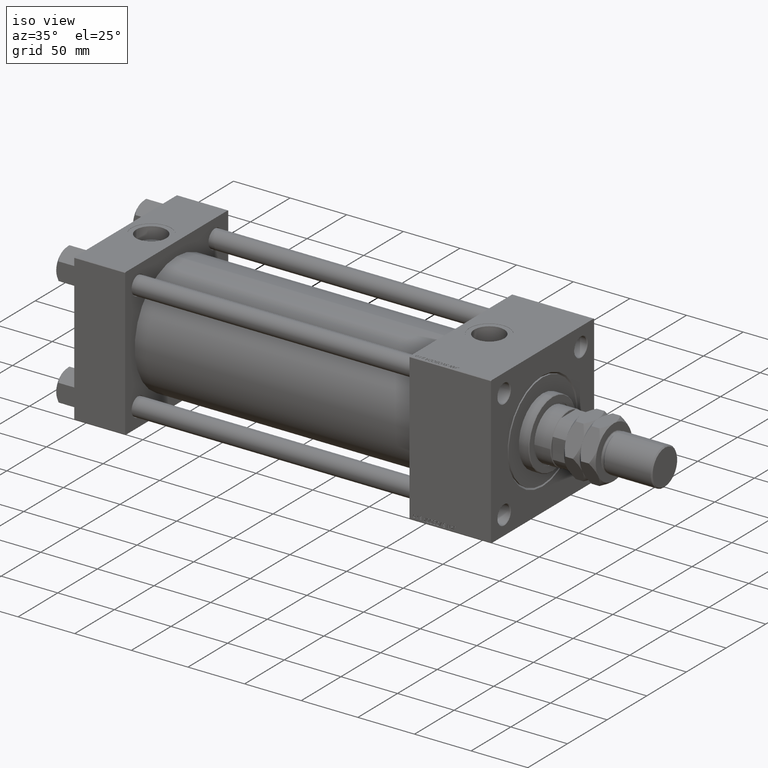
[diagram: clean part render]
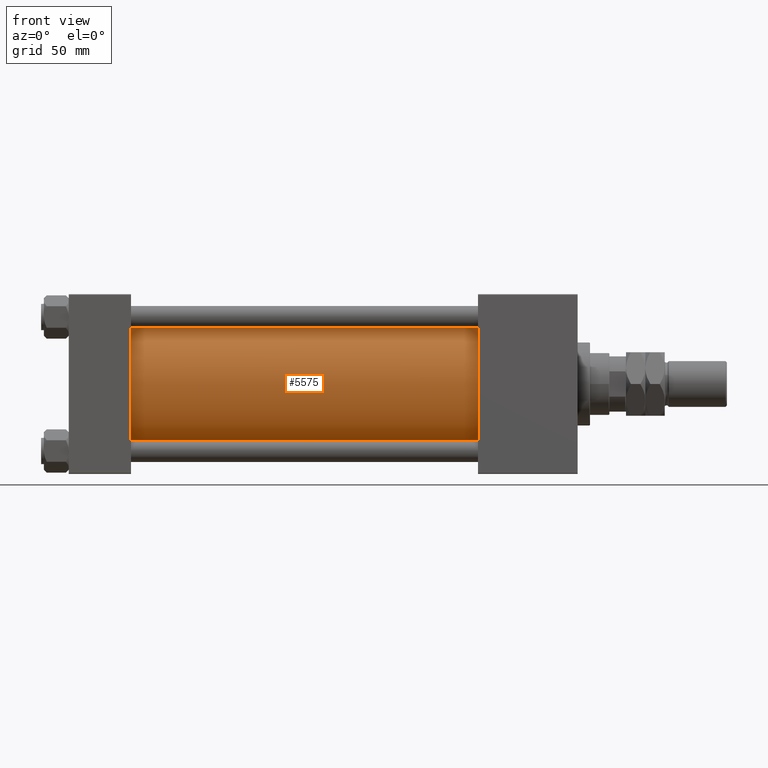
[diagram: tour spotlight — one face highlighted and labeled with its STEP entity id]
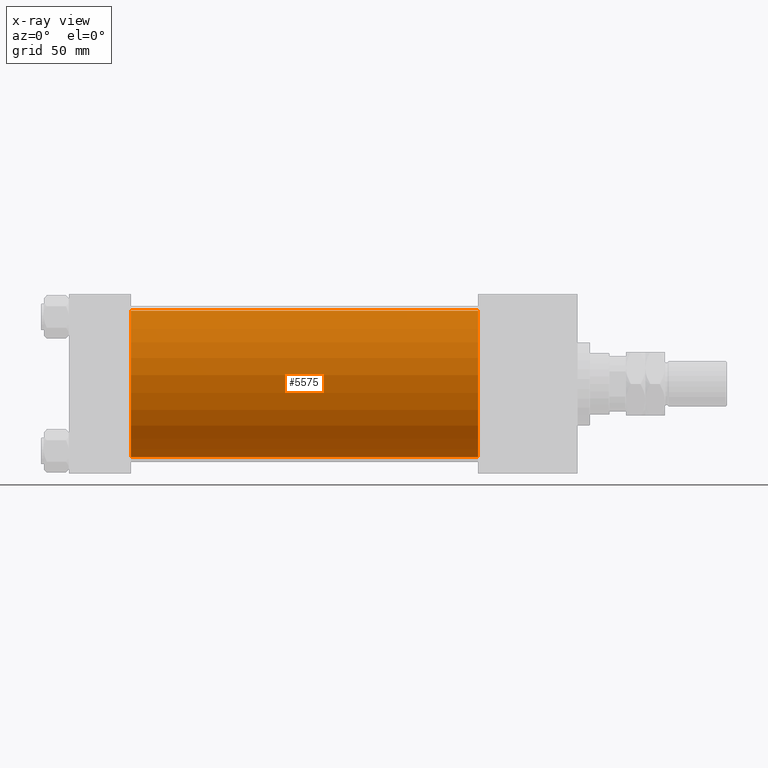
[diagram: x-ray of the same camera — body ghosted, this tour face saturated]
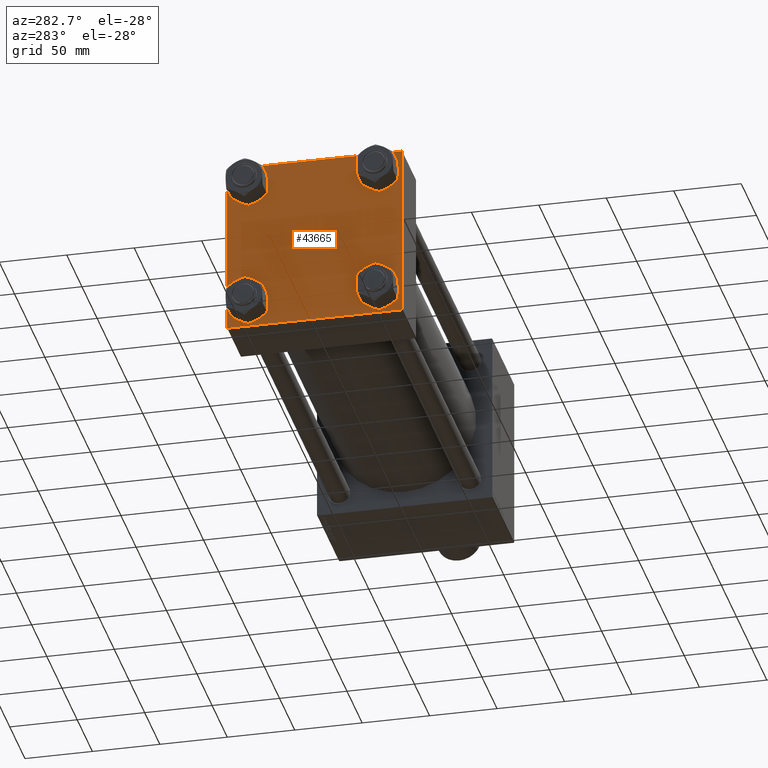
[diagram: tour spotlight — one face highlighted and labeled with its STEP entity id]
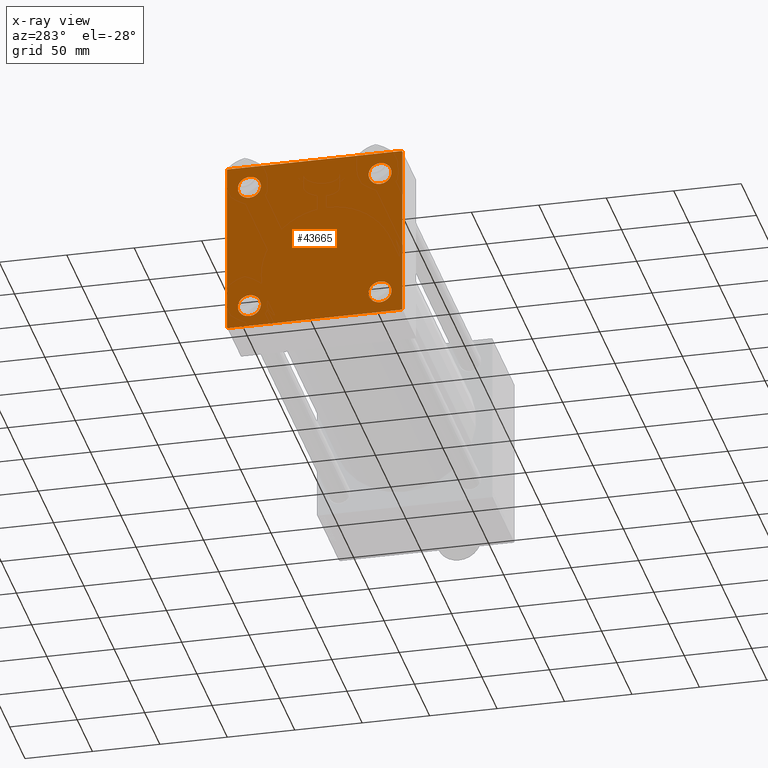
[diagram: x-ray of the same camera — body ghosted, this tour face saturated]
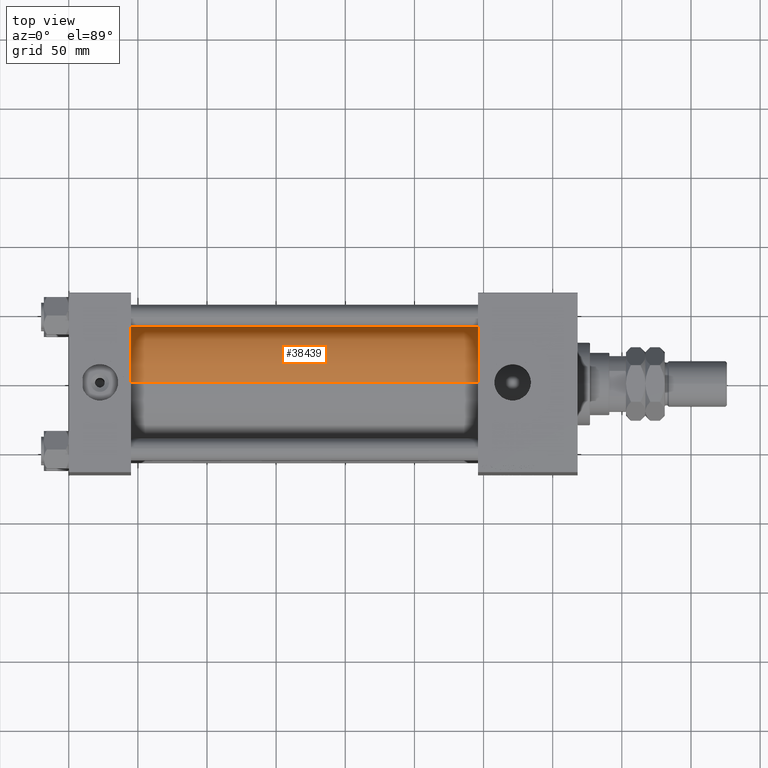
[diagram: tour spotlight — one face highlighted and labeled with its STEP entity id]
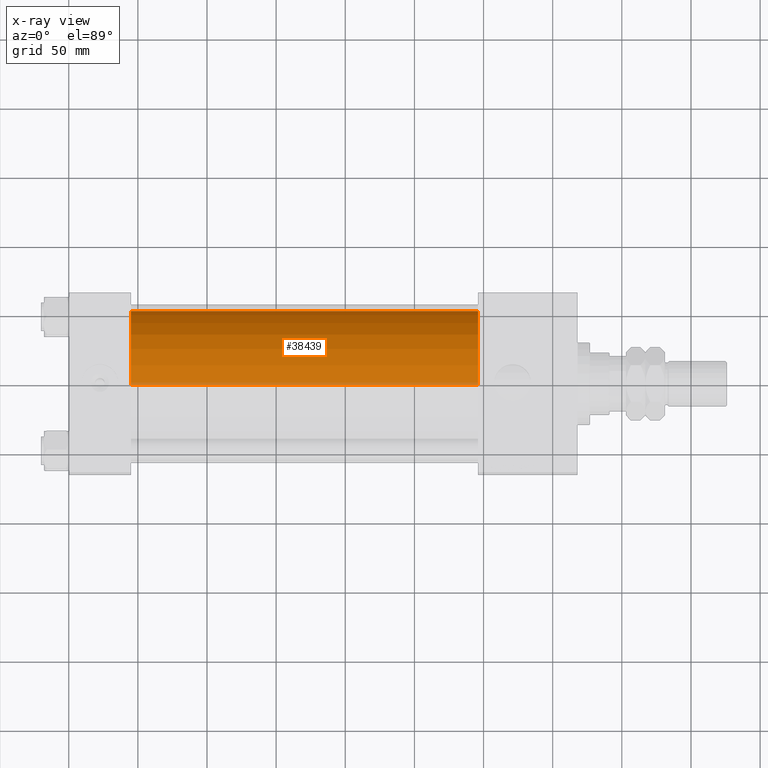
[diagram: x-ray of the same camera — body ghosted, this tour face saturated]
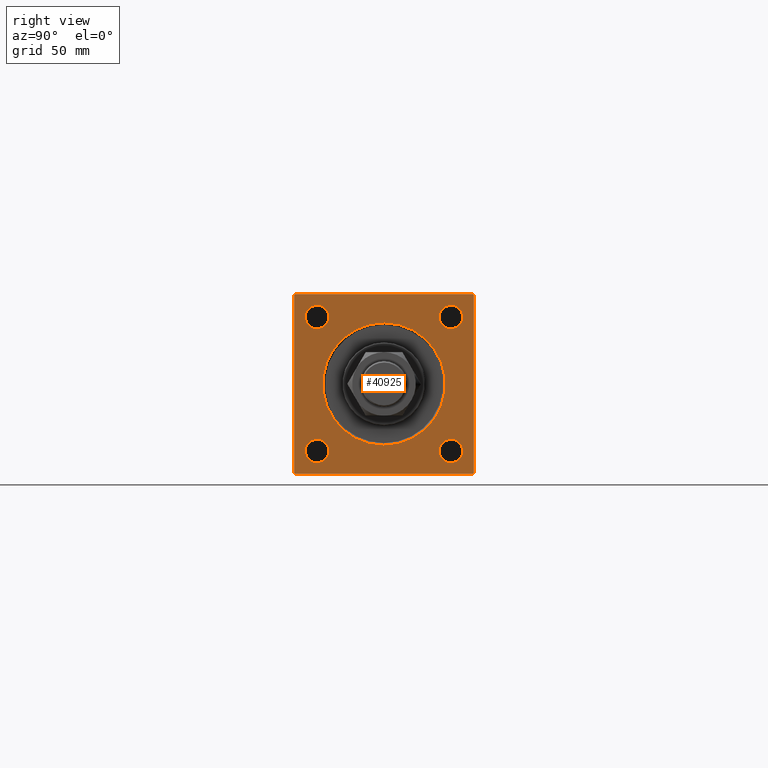
[diagram: tour spotlight — one face highlighted and labeled with its STEP entity id]
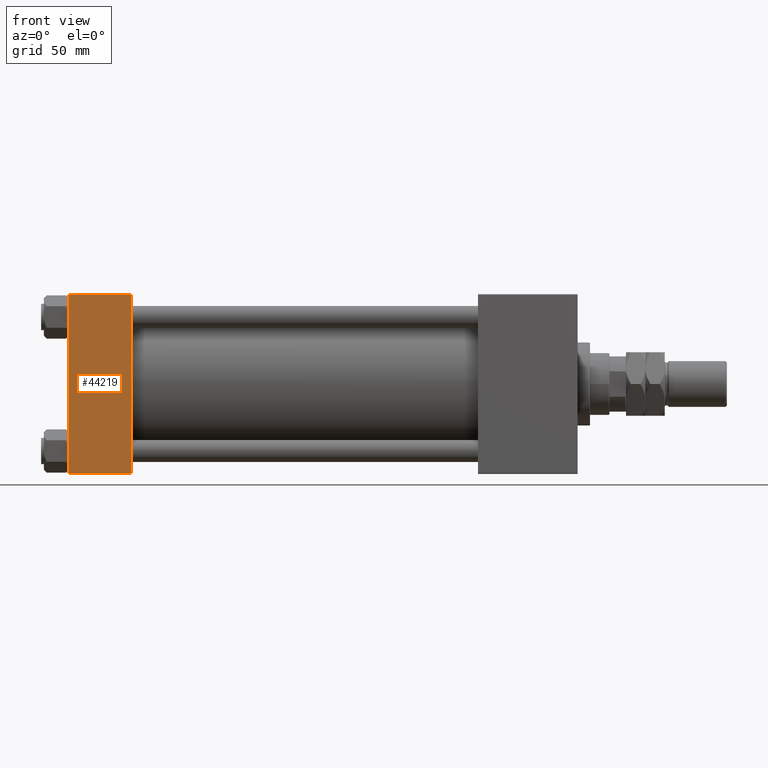
[diagram: tour spotlight — one face highlighted and labeled with its STEP entity id]
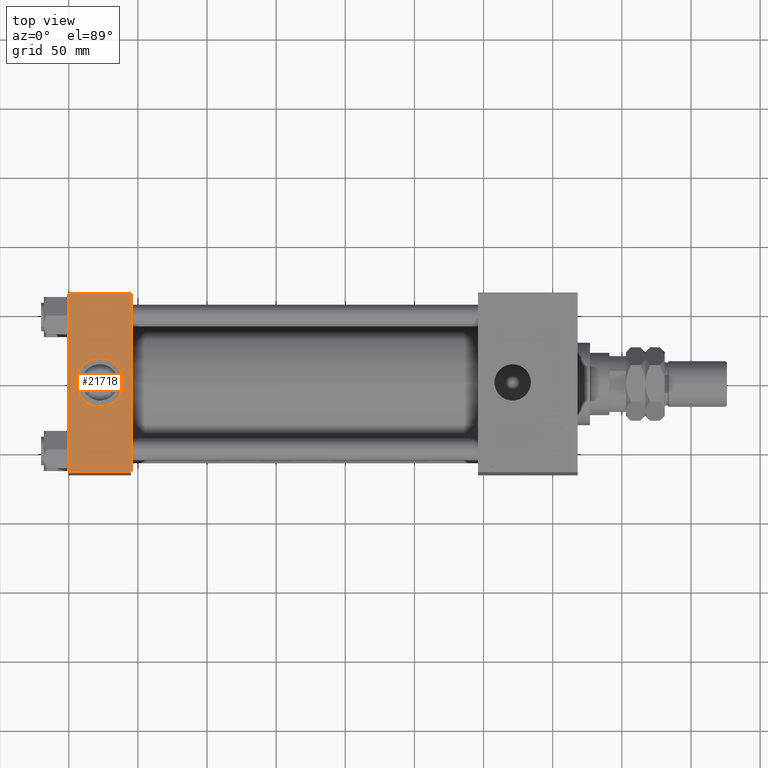
[diagram: tour spotlight — one face highlighted and labeled with its STEP entity id]
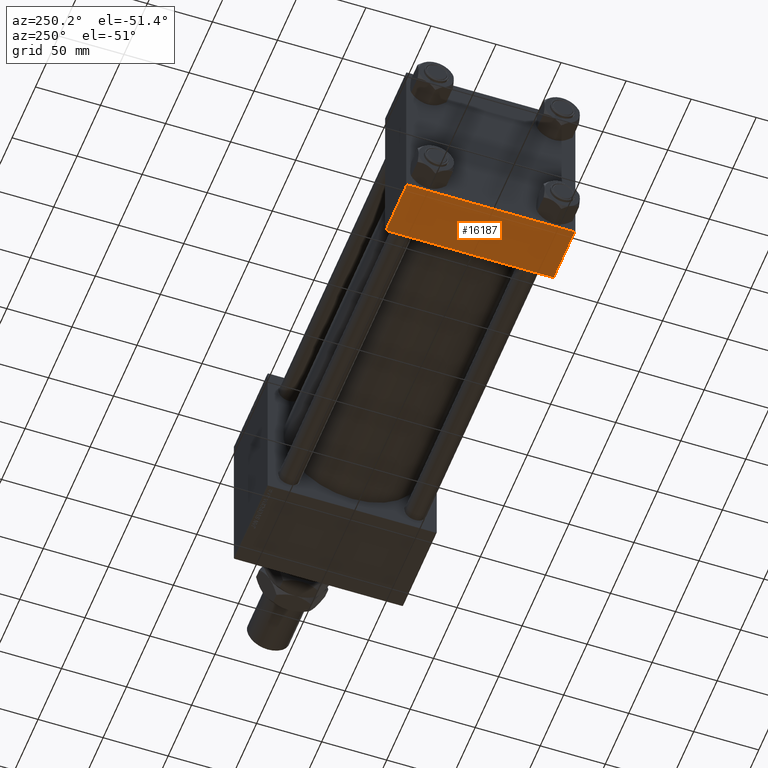
[diagram: tour spotlight — one face highlighted and labeled with its STEP entity id]
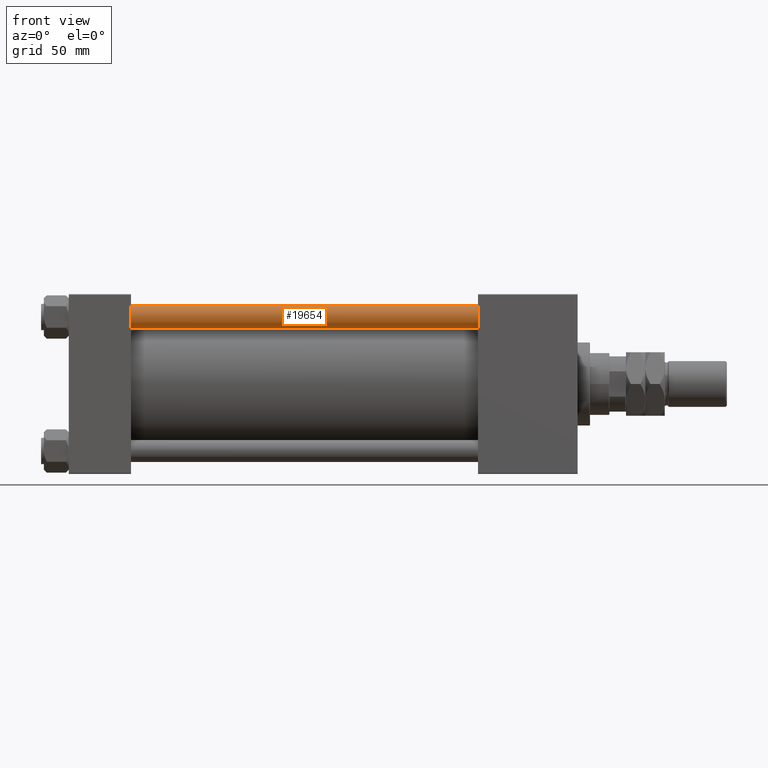
[diagram: tour spotlight — one face highlighted and labeled with its STEP entity id]
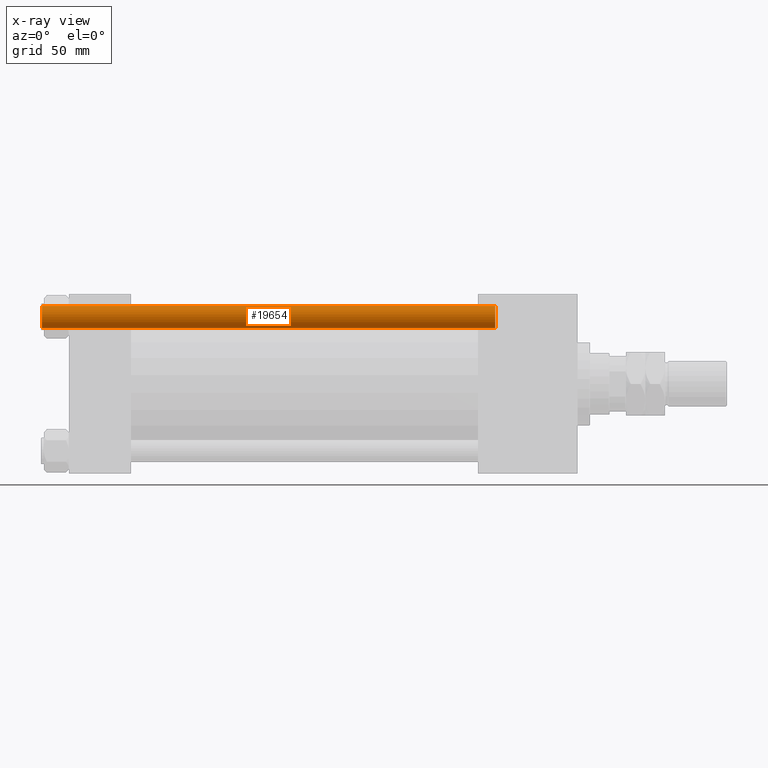
[diagram: x-ray of the same camera — body ghosted, this tour face saturated]
A machine part: a face-by-face anatomy tour. The part has 1245 B-rep faces; the first image is the clean iso view, then the 8 largest visible faces are spotlighted one at a time (largest first), each with its STEP entity span.

Face 1 — front view, entity #5575. An x-ray twin of the same camera follows (body ghosted, this face saturated) — the face is partly hidden behind the body. In plain terms, the highlighted cylindrical surface (partial cylindrical patch) has radius 53 mm, axis along (-1, -0, -0).
Definition (entity closure, byte-faithful):
#298 = LINE ( 'NONE', #19900, #9761 ) ;
#1106 = DIRECTION ( 'NONE',  ( 0.000000000000000000, 0.000000000000000000, 1.000000000000000000 ) ) ;
#1274 = CARTESIAN_POINT ( 'NONE',  ( 44.99999999999998579, 3.888542821515762466E-15, -53.00000000000000711 ) ) ;
#2366 = LINE ( 'NONE', #27468, #18955 ) ;
#3142 = DIRECTION ( 'NONE',  ( -1.000000000000000000, -0.000000000000000000, -0.000000000000000000 ) ) ;
#3909 = DIRECTION ( 'NONE',  ( 1.000000000000000000, -0.000000000000000000, 0.000000000000000000 ) ) ;
#5575 = ADVANCED_FACE ( 'NONE', ( #9579 ), #49522, .T. ) ;
#6116 = CARTESIAN_POINT ( 'NONE',  ( 296.0000000000000000, 3.888542821515762466E-15, -53.00000000000000711 ) ) ;
#8249 = VERTEX_POINT ( 'NONE', #33431 ) ;
#8633 = EDGE_LOOP ( 'NONE', ( #12034, #28032, #27151, #33427 ) ) ;
#9060 = CIRCLE ( 'NONE', #32723, 53.00000000000000711 ) ;
#9333 = EDGE_CURVE ( 'NONE', #52249, #30188, #298, .T. ) ;
#9579 = FACE_OUTER_BOUND ( 'NONE', #8633, .T. ) ;
#9761 = VECTOR ( 'NONE', #15672, 1000.000000000000000 ) ;
#12034 = ORIENTED_EDGE ( 'NONE', *, *, #9333, .F. ) ;
#14981 = DIRECTION ( 'NONE',  ( 1.000000000000000000, 0.000000000000000000, 0.000000000000000000 ) ) ;
#15565 = AXIS2_PLACEMENT_3D ( 'NONE', #41594, #29155, #1106 ) ;
#15672 = DIRECTION ( 'NONE',  ( -1.000000000000000000, -0.000000000000000000, -0.000000000000000000 ) ) ;
#15828 = EDGE_CURVE ( 'NONE', #8249, #52249, #9060, .T. ) ;
#18955 = VECTOR ( 'NONE', #3142, 1000.000000000000000 ) ;
#19900 = CARTESIAN_POINT ( 'NONE',  ( 296.0000000000000000, 3.888542821515762466E-15, -53.00000000000000711 ) ) ;
#19979 = CARTESIAN_POINT ( 'NONE',  ( 44.99999999999998579, -2.602085213965210642E-15, 53.00000000000000711 ) ) ;
#23629 = CIRCLE ( 'NONE', #47312, 53.00000000000000711 ) ;
#23753 = DIRECTION ( 'NONE',  ( 0.000000000000000000, 0.000000000000000000, 1.000000000000000000 ) ) ;
#27151 = ORIENTED_EDGE ( 'NONE', *, *, #27806, .T. ) ;
#27468 = CARTESIAN_POINT ( 'NONE',  ( 296.0000000000000000, -2.602085213965210642E-15, 53.00000000000000711 ) ) ;
#27806 = EDGE_CURVE ( 'NONE', #8249, #48332, #2366, .T. ) ;
#28032 = ORIENTED_EDGE ( 'NONE', *, *, #15828, .F. ) ;
#29155 = DIRECTION ( 'NONE',  ( -1.000000000000000000, -0.000000000000000000, -0.000000000000000000 ) ) ;
#30188 = VERTEX_POINT ( 'NONE', #1274 ) ;
#32723 = AXIS2_PLACEMENT_3D ( 'NONE', #46467, #14981, #43026 ) ;
#33427 = ORIENTED_EDGE ( 'NONE', *, *, #45921, .T. ) ;
#33431 = CARTESIAN_POINT ( 'NONE',  ( 296.0000000000000000, -2.602085213965210642E-15, 53.00000000000000711 ) ) ;
#41594 = CARTESIAN_POINT ( 'NONE',  ( 296.0000000000000000, -2.602085213965210642E-15, 0.000000000000000000 ) ) ;
#43026 = DIRECTION ( 'NONE',  ( 0.000000000000000000, 0.000000000000000000, -1.000000000000000000 ) ) ;
#43868 = CARTESIAN_POINT ( 'NONE',  ( 44.99999999999998579, -2.602085213965210642E-15, 0.000000000000000000 ) ) ;
#45921 = EDGE_CURVE ( 'NONE', #48332, #30188, #23629, .T. ) ;
#46467 = CARTESIAN_POINT ( 'NONE',  ( 296.0000000000000000, -2.602085213965210642E-15, 0.000000000000000000 ) ) ;
#47312 = AXIS2_PLACEMENT_3D ( 'NONE', #43868, #3909, #23753 ) ;
#48332 = VERTEX_POINT ( 'NONE', #19979 ) ;
#49522 = CYLINDRICAL_SURFACE ( 'NONE', #15565, 53.00000000000000711 ) ;
#52249 = VERTEX_POINT ( 'NONE', #6116 ) ;

Face 2 — auxiliary view, entity #43665. An x-ray twin of the same camera follows (body ghosted, this face saturated) — the face is partly hidden behind the body. In plain terms, the highlighted planar face has unit normal (-1, 0, 0).
Definition (entity closure, byte-faithful):
#77 = CARTESIAN_POINT ( 'NONE',  ( 0.000000000000000000, 64.74999999999997158, -64.74999999999997158 ) ) ;
#233 = CARTESIAN_POINT ( 'NONE',  ( 0.000000000000000000, 65.00000000000000000, -64.49999999999995737 ) ) ;
#287 = ORIENTED_EDGE ( 'NONE', *, *, #1269, .T. ) ;
#333 = AXIS2_PLACEMENT_3D ( 'NONE', #487, #20597, #12918 ) ;
#487 = CARTESIAN_POINT ( 'NONE',  ( 0.000000000000000000, 48.45000000000000995, -48.45000000000001705 ) ) ;
#647 = VERTEX_POINT ( 'NONE', #37345 ) ;
#900 = EDGE_CURVE ( 'NONE', #3429, #31429, #42297, .T. ) ;
#1025 = VERTEX_POINT ( 'NONE', #44114 ) ;
#1269 = EDGE_CURVE ( 'NONE', #20301, #34874, #47524, .T. ) ;
#1921 = CARTESIAN_POINT ( 'NONE',  ( 0.000000000000000000, 64.49999999999997158, 65.00000000000001421 ) ) ;
#2381 = VERTEX_POINT ( 'NONE', #16963 ) ;
#2655 = CARTESIAN_POINT ( 'NONE',  ( 0.000000000000000000, 48.45000000000000995, 56.95000000000002416 ) ) ;
#2808 = CARTESIAN_POINT ( 'NONE',  ( 0.000000000000000000, -48.44999999999999574, -48.45000000000003126 ) ) ;
#2841 = CARTESIAN_POINT ( 'NONE',  ( 0.000000000000000000, -64.49999999999994316, -65.00000000000000000 ) ) ;
#2859 = VECTOR ( 'NONE', #32248, 1000.000000000000000 ) ;
#2925 = DIRECTION ( 'NONE',  ( 0.000000000000000000, 0.000000000000000000, 1.000000000000000000 ) ) ;
#3193 = VECTOR ( 'NONE', #16219, 1000.000000000000114 ) ;
#3273 = ORIENTED_EDGE ( 'NONE', *, *, #26575, .T. ) ;
#3429 = VERTEX_POINT ( 'NONE', #1921 ) ;
#3872 = AXIS2_PLACEMENT_3D ( 'NONE', #30822, #35580, #42992 ) ;
#3878 = CARTESIAN_POINT ( 'NONE',  ( 0.000000000000000000, -48.44999999999999574, -48.45000000000003126 ) ) ;
#3971 = VECTOR ( 'NONE', #30924, 1000.000000000000000 ) ;
#4055 = LINE ( 'NONE', #77, #3193 ) ;
#4203 = CIRCLE ( 'NONE', #46436, 8.500000000000007105 ) ;
#4401 = AXIS2_PLACEMENT_3D ( 'NONE', #2808, #39583, #14991 ) ;
#4681 = VERTEX_POINT ( 'NONE', #15090 ) ;
#4771 = VERTEX_POINT ( 'NONE', #233 ) ;
#5256 = AXIS2_PLACEMENT_3D ( 'NONE', #8005, #12488, #27119 ) ;
#5416 = PLANE ( 'NONE',  #16784 ) ;
#5974 = DIRECTION ( 'NONE',  ( 0.000000000000000000, -0.7071067811865279218, 0.7071067811865671127 ) ) ;
#6421 = AXIS2_PLACEMENT_3D ( 'NONE', #14459, #30604, #33542 ) ;
#6499 = CARTESIAN_POINT ( 'NONE',  ( 0.000000000000000000, 48.45000000000000995, -39.95000000000000284 ) ) ;
#6661 = AXIS2_PLACEMENT_3D ( 'NONE', #3878, #12333, #7588 ) ;
#7140 = LINE ( 'NONE', #27228, #32575 ) ;
#7588 = DIRECTION ( 'NONE',  ( 0.000000000000000000, 0.000000000000000000, 1.000000000000000000 ) ) ;
#7988 = VERTEX_POINT ( 'NONE', #46180 ) ;
#8005 = CARTESIAN_POINT ( 'NONE',  ( 0.000000000000000000, 48.45000000000000995, 48.45000000000001705 ) ) ;
#8737 = EDGE_CURVE ( 'NONE', #25458, #14020, #35860, .T. ) ;
#10167 = ORIENTED_EDGE ( 'NONE', *, *, #900, .T. ) ;
#10367 = DIRECTION ( 'NONE',  ( 0.000000000000000000, 0.000000000000000000, 1.000000000000000000 ) ) ;
#10403 = LINE ( 'NONE', #14105, #33275 ) ;
#10641 = CIRCLE ( 'NONE', #6421, 8.500000000000007105 ) ;
#10879 = CIRCLE ( 'NONE', #6661, 8.500000000000007105 ) ;
#11030 = ORIENTED_EDGE ( 'NONE', *, *, #8737, .T. ) ;
#12258 = EDGE_CURVE ( 'NONE', #22644, #40965, #7140, .T. ) ;
#12333 = DIRECTION ( 'NONE',  ( 1.000000000000000000, -0.000000000000000000, 0.000000000000000000 ) ) ;
#12488 = DIRECTION ( 'NONE',  ( 1.000000000000000000, -0.000000000000000000, 0.000000000000000000 ) ) ;
#12560 = ORIENTED_EDGE ( 'NONE', *, *, #41226, .T. ) ;
#12637 = LINE ( 'NONE', #20065, #2859 ) ;
#12918 = DIRECTION ( 'NONE',  ( 0.000000000000000000, 0.000000000000000000, 1.000000000000000000 ) ) ;
#13380 = EDGE_LOOP ( 'NONE', ( #25192, #49647 ) ) ;
#13384 = VECTOR ( 'NONE', #18501, 1000.000000000000000 ) ;
#13562 = EDGE_CURVE ( 'NONE', #51478, #40965, #30307, .T. ) ;
#14020 = VERTEX_POINT ( 'NONE', #28867 ) ;
#14105 = CARTESIAN_POINT ( 'NONE',  ( -0.000000000000000000, -64.74999999999819522, 64.75000000000179057 ) ) ;
#14459 = CARTESIAN_POINT ( 'NONE',  ( 0.000000000000000000, -48.44999999999999574, 48.45000000000003126 ) ) ;
#14991 = DIRECTION ( 'NONE',  ( 0.000000000000000000, 0.000000000000000000, 1.000000000000000000 ) ) ;
#15090 = CARTESIAN_POINT ( 'NONE',  ( 0.000000000000000000, -64.49999999999997158, 65.00000000000000000 ) ) ;
#15137 = EDGE_CURVE ( 'NONE', #22835, #2381, #36089, .T. ) ;
#15472 = EDGE_CURVE ( 'NONE', #31429, #4771, #19524, .T. ) ;
#16219 = DIRECTION ( 'NONE',  ( -0.000000000000000000, -0.7071067811865474617, -0.7071067811865474617 ) ) ;
#16784 = AXIS2_PLACEMENT_3D ( 'NONE', #17594, #33743, #18895 ) ;
#16963 = CARTESIAN_POINT ( 'NONE',  ( 0.000000000000000000, -48.44999999999999574, 56.95000000000003837 ) ) ;
#17074 = VECTOR ( 'NONE', #30650, 1000.000000000000114 ) ;
#17594 = CARTESIAN_POINT ( 'NONE',  ( 0.000000000000000000, 0.000000000000000000, 0.000000000000000000 ) ) ;
#17902 = ORIENTED_EDGE ( 'NONE', *, *, #13562, .T. ) ;
#18235 = LINE ( 'NONE', #51023, #13384 ) ;
#18501 = DIRECTION ( 'NONE',  ( 0.000000000000000000, -1.000000000000000000, -1.067522139062650425E-16 ) ) ;
#18609 = DIRECTION ( 'NONE',  ( -0.000000000000000000, 0.7071067811865672237, 0.7071067811865279218 ) ) ;
#18895 = DIRECTION ( 'NONE',  ( -0.000000000000000000, 0.000000000000000000, 1.000000000000000000 ) ) ;
#19524 = LINE ( 'NONE', #35168, #3971 ) ;
#19766 = ORIENTED_EDGE ( 'NONE', *, *, #43401, .F. ) ;
#19793 = EDGE_CURVE ( 'NONE', #647, #1025, #10879, .T. ) ;
#20065 = CARTESIAN_POINT ( 'NONE',  ( 0.000000000000000000, 65.00000000000000000, -64.99999999999998579 ) ) ;
#20301 = VERTEX_POINT ( 'NONE', #2655 ) ;
#20597 = DIRECTION ( 'NONE',  ( 1.000000000000000000, -0.000000000000000000, 0.000000000000000000 ) ) ;
#21028 = FACE_BOUND ( 'NONE', #33363, .T. ) ;
#21336 = CIRCLE ( 'NONE', #4401, 8.500000000000007105 ) ;
#21658 = VECTOR ( 'NONE', #5974, 1000.000000000000000 ) ;
#22644 = VERTEX_POINT ( 'NONE', #30461 ) ;
#22835 = VERTEX_POINT ( 'NONE', #49178 ) ;
#23782 = DIRECTION ( 'NONE',  ( 0.000000000000000000, 0.000000000000000000, -1.000000000000000000 ) ) ;
#23796 = ORIENTED_EDGE ( 'NONE', *, *, #27905, .T. ) ;
#24997 = ORIENTED_EDGE ( 'NONE', *, *, #15137, .T. ) ;
#25192 = ORIENTED_EDGE ( 'NONE', *, *, #19793, .T. ) ;
#25458 = VERTEX_POINT ( 'NONE', #6499 ) ;
#26506 = ORIENTED_EDGE ( 'NONE', *, *, #33090, .T. ) ;
#26575 = EDGE_CURVE ( 'NONE', #22644, #4681, #10403, .T. ) ;
#27119 = DIRECTION ( 'NONE',  ( 0.000000000000000000, 0.000000000000000000, 1.000000000000000000 ) ) ;
#27228 = CARTESIAN_POINT ( 'NONE',  ( 0.000000000000000000, -65.00000000000000000, 65.00000000000000000 ) ) ;
#27314 = ORIENTED_EDGE ( 'NONE', *, *, #35578, .T. ) ;
#27905 = EDGE_CURVE ( 'NONE', #7988, #51478, #12637, .T. ) ;
#28008 = CARTESIAN_POINT ( 'NONE',  ( 0.000000000000000000, 48.45000000000000995, 39.95000000000000284 ) ) ;
#28867 = CARTESIAN_POINT ( 'NONE',  ( 0.000000000000000000, 48.45000000000000995, -56.95000000000002416 ) ) ;
#29301 = AXIS2_PLACEMENT_3D ( 'NONE', #39181, #47892, #2925 ) ;
#30307 = LINE ( 'NONE', #33770, #21658 ) ;
#30461 = CARTESIAN_POINT ( 'NONE',  ( 0.000000000000000000, -65.00000000000000000, 64.50000000000000000 ) ) ;
#30600 = ORIENTED_EDGE ( 'NONE', *, *, #12258, .F. ) ;
#30604 = DIRECTION ( 'NONE',  ( 1.000000000000000000, -0.000000000000000000, 0.000000000000000000 ) ) ;
#30650 = DIRECTION ( 'NONE',  ( 0.000000000000000000, 0.7071067811865474617, -0.7071067811865474617 ) ) ;
#30822 = CARTESIAN_POINT ( 'NONE',  ( 0.000000000000000000, 48.45000000000000995, -48.45000000000001705 ) ) ;
#30924 = DIRECTION ( 'NONE',  ( 0.000000000000000000, 0.000000000000000000, -1.000000000000000000 ) ) ;
#31429 = VERTEX_POINT ( 'NONE', #38616 ) ;
#31854 = EDGE_LOOP ( 'NONE', ( #287, #38427 ) ) ;
#32248 = DIRECTION ( 'NONE',  ( 0.000000000000000000, -1.000000000000000000, -1.067522139062650425E-16 ) ) ;
#32575 = VECTOR ( 'NONE', #23782, 1000.000000000000000 ) ;
#33090 = EDGE_CURVE ( 'NONE', #14020, #25458, #42754, .T. ) ;
#33275 = VECTOR ( 'NONE', #18609, 1000.000000000000000 ) ;
#33363 = EDGE_LOOP ( 'NONE', ( #11030, #26506 ) ) ;
#33542 = DIRECTION ( 'NONE',  ( 0.000000000000000000, 0.000000000000000000, 1.000000000000000000 ) ) ;
#33743 = DIRECTION ( 'NONE',  ( -1.000000000000000000, 0.000000000000000000, -0.000000000000000000 ) ) ;
#33770 = CARTESIAN_POINT ( 'NONE',  ( 0.000000000000000000, -64.75000000000176215, -64.74999999999816680 ) ) ;
#34874 = VERTEX_POINT ( 'NONE', #28008 ) ;
#35168 = CARTESIAN_POINT ( 'NONE',  ( 0.000000000000000000, 65.00000000000000000, 65.00000000000001421 ) ) ;
#35507 = CARTESIAN_POINT ( 'NONE',  ( 0.000000000000000000, 48.45000000000000995, 48.45000000000001705 ) ) ;
#35578 = EDGE_CURVE ( 'NONE', #2381, #22835, #10641, .T. ) ;
#35580 = DIRECTION ( 'NONE',  ( 1.000000000000000000, -0.000000000000000000, 0.000000000000000000 ) ) ;
#35860 = CIRCLE ( 'NONE', #333, 8.500000000000007105 ) ;
#36089 = CIRCLE ( 'NONE', #29301, 8.500000000000007105 ) ;
#37173 = FACE_BOUND ( 'NONE', #31854, .T. ) ;
#37345 = CARTESIAN_POINT ( 'NONE',  ( 0.000000000000000000, -48.44999999999999574, -39.95000000000001705 ) ) ;
#37706 = FACE_BOUND ( 'NONE', #13380, .T. ) ;
#38427 = ORIENTED_EDGE ( 'NONE', *, *, #49037, .T. ) ;
#38616 = CARTESIAN_POINT ( 'NONE',  ( 0.000000000000000000, 65.00000000000000000, 64.49999999999998579 ) ) ;
#39048 = ORIENTED_EDGE ( 'NONE', *, *, #15472, .T. ) ;
#39181 = CARTESIAN_POINT ( 'NONE',  ( 0.000000000000000000, -48.44999999999999574, 48.45000000000003126 ) ) ;
#39360 = EDGE_LOOP ( 'NONE', ( #39048, #12560, #23796, #17902, #30600, #3273, #19766, #10167 ) ) ;
#39583 = DIRECTION ( 'NONE',  ( 1.000000000000000000, -0.000000000000000000, 0.000000000000000000 ) ) ;
#39720 = DIRECTION ( 'NONE',  ( 1.000000000000000000, -0.000000000000000000, 0.000000000000000000 ) ) ;
#40965 = VERTEX_POINT ( 'NONE', #49132 ) ;
#41226 = EDGE_CURVE ( 'NONE', #4771, #7988, #4055, .T. ) ;
#41668 = FACE_OUTER_BOUND ( 'NONE', #39360, .T. ) ;
#42297 = LINE ( 'NONE', #46271, #17074 ) ;
#42450 = FACE_BOUND ( 'NONE', #51816, .T. ) ;
#42754 = CIRCLE ( 'NONE', #3872, 8.500000000000007105 ) ;
#42992 = DIRECTION ( 'NONE',  ( 0.000000000000000000, 0.000000000000000000, 1.000000000000000000 ) ) ;
#43401 = EDGE_CURVE ( 'NONE', #3429, #4681, #18235, .T. ) ;
#43665 = ADVANCED_FACE ( 'NONE', ( #42450, #37706, #21028, #37173, #41668 ), #5416, .T. ) ;
#44114 = CARTESIAN_POINT ( 'NONE',  ( 0.000000000000000000, -48.44999999999999574, -56.95000000000003837 ) ) ;
#46180 = CARTESIAN_POINT ( 'NONE',  ( 0.000000000000000000, 64.49999999999997158, -64.99999999999998579 ) ) ;
#46271 = CARTESIAN_POINT ( 'NONE',  ( 0.000000000000000000, 64.74999999999998579, 64.74999999999998579 ) ) ;
#46436 = AXIS2_PLACEMENT_3D ( 'NONE', #35507, #39720, #10367 ) ;
#47524 = CIRCLE ( 'NONE', #5256, 8.500000000000007105 ) ;
#47892 = DIRECTION ( 'NONE',  ( 1.000000000000000000, -0.000000000000000000, 0.000000000000000000 ) ) ;
#49037 = EDGE_CURVE ( 'NONE', #34874, #20301, #4203, .T. ) ;
#49132 = CARTESIAN_POINT ( 'NONE',  ( 0.000000000000000000, -65.00000000000000000, -64.49999999999991473 ) ) ;
#49178 = CARTESIAN_POINT ( 'NONE',  ( 0.000000000000000000, -48.44999999999999574, 39.95000000000001705 ) ) ;
#49647 = ORIENTED_EDGE ( 'NONE', *, *, #51304, .T. ) ;
#51023 = CARTESIAN_POINT ( 'NONE',  ( 0.000000000000000000, 65.00000000000000000, 65.00000000000001421 ) ) ;
#51304 = EDGE_CURVE ( 'NONE', #1025, #647, #21336, .T. ) ;
#51478 = VERTEX_POINT ( 'NONE', #2841 ) ;
#51816 = EDGE_LOOP ( 'NONE', ( #27314, #24997 ) ) ;

Face 3 — top view, entity #38439. An x-ray twin of the same camera follows (body ghosted, this face saturated) — the face is partly hidden behind the body. In plain terms, the highlighted cylindrical surface (partial cylindrical patch) has radius 53 mm, axis along (-1, -0, -0).
Definition (entity closure, byte-faithful):
#298 = LINE ( 'NONE', #19900, #9761 ) ;
#1274 = CARTESIAN_POINT ( 'NONE',  ( 44.99999999999998579, 3.888542821515762466E-15, -53.00000000000000711 ) ) ;
#1981 = DIRECTION ( 'NONE',  ( 1.000000000000000000, -0.000000000000000000, 0.000000000000000000 ) ) ;
#2366 = LINE ( 'NONE', #27468, #18955 ) ;
#3032 = DIRECTION ( 'NONE',  ( 0.000000000000000000, 0.000000000000000000, 1.000000000000000000 ) ) ;
#3142 = DIRECTION ( 'NONE',  ( -1.000000000000000000, -0.000000000000000000, -0.000000000000000000 ) ) ;
#3748 = EDGE_LOOP ( 'NONE', ( #13507, #50786, #46316, #23069 ) ) ;
#6116 = CARTESIAN_POINT ( 'NONE',  ( 296.0000000000000000, 3.888542821515762466E-15, -53.00000000000000711 ) ) ;
#8249 = VERTEX_POINT ( 'NONE', #33431 ) ;
#8778 = CARTESIAN_POINT ( 'NONE',  ( 296.0000000000000000, -2.602085213965210642E-15, 0.000000000000000000 ) ) ;
#9333 = EDGE_CURVE ( 'NONE', #52249, #30188, #298, .T. ) ;
#9761 = VECTOR ( 'NONE', #15672, 1000.000000000000000 ) ;
#13507 = ORIENTED_EDGE ( 'NONE', *, *, #20308, .F. ) ;
#15206 = CARTESIAN_POINT ( 'NONE',  ( 44.99999999999998579, -2.602085213965210642E-15, 0.000000000000000000 ) ) ;
#15672 = DIRECTION ( 'NONE',  ( -1.000000000000000000, -0.000000000000000000, -0.000000000000000000 ) ) ;
#18955 = VECTOR ( 'NONE', #3142, 1000.000000000000000 ) ;
#19900 = CARTESIAN_POINT ( 'NONE',  ( 296.0000000000000000, 3.888542821515762466E-15, -53.00000000000000711 ) ) ;
#19979 = CARTESIAN_POINT ( 'NONE',  ( 44.99999999999998579, -2.602085213965210642E-15, 53.00000000000000711 ) ) ;
#20308 = EDGE_CURVE ( 'NONE', #52249, #8249, #48899, .T. ) ;
#23069 = ORIENTED_EDGE ( 'NONE', *, *, #27806, .F. ) ;
#26080 = AXIS2_PLACEMENT_3D ( 'NONE', #28548, #44947, #28019 ) ;
#27468 = CARTESIAN_POINT ( 'NONE',  ( 296.0000000000000000, -2.602085213965210642E-15, 53.00000000000000711 ) ) ;
#27806 = EDGE_CURVE ( 'NONE', #8249, #48332, #2366, .T. ) ;
#27872 = CIRCLE ( 'NONE', #48161, 53.00000000000000711 ) ;
#28019 = DIRECTION ( 'NONE',  ( 0.000000000000000000, 0.000000000000000000, -1.000000000000000000 ) ) ;
#28548 = CARTESIAN_POINT ( 'NONE',  ( 296.0000000000000000, -2.602085213965210642E-15, 0.000000000000000000 ) ) ;
#30188 = VERTEX_POINT ( 'NONE', #1274 ) ;
#33431 = CARTESIAN_POINT ( 'NONE',  ( 296.0000000000000000, -2.602085213965210642E-15, 53.00000000000000711 ) ) ;
#34112 = FACE_OUTER_BOUND ( 'NONE', #3748, .T. ) ;
#38439 = ADVANCED_FACE ( 'NONE', ( #34112 ), #44247, .T. ) ;
#41112 = AXIS2_PLACEMENT_3D ( 'NONE', #8778, #45289, #48469 ) ;
#44247 = CYLINDRICAL_SURFACE ( 'NONE', #41112, 53.00000000000000711 ) ;
#44947 = DIRECTION ( 'NONE',  ( 1.000000000000000000, 0.000000000000000000, 0.000000000000000000 ) ) ;
#45289 = DIRECTION ( 'NONE',  ( -1.000000000000000000, -0.000000000000000000, -0.000000000000000000 ) ) ;
#46316 = ORIENTED_EDGE ( 'NONE', *, *, #50796, .T. ) ;
#48161 = AXIS2_PLACEMENT_3D ( 'NONE', #15206, #1981, #3032 ) ;
#48332 = VERTEX_POINT ( 'NONE', #19979 ) ;
#48469 = DIRECTION ( 'NONE',  ( 0.000000000000000000, 0.000000000000000000, 1.000000000000000000 ) ) ;
#48899 = CIRCLE ( 'NONE', #26080, 53.00000000000000711 ) ;
#50786 = ORIENTED_EDGE ( 'NONE', *, *, #9333, .T. ) ;
#50796 = EDGE_CURVE ( 'NONE', #30188, #48332, #27872, .T. ) ;
#52249 = VERTEX_POINT ( 'NONE', #6116 ) ;

Face 4 — right view, entity #40925. In plain terms, the highlighted planar face has unit normal (-1, 0, 0).
Definition (entity closure, byte-faithful):
#308 = VERTEX_POINT ( 'NONE', #51402 ) ;
#462 = DIRECTION ( 'NONE',  ( -1.000000000000000000, 0.000000000000000000, -0.000000000000000000 ) ) ;
#526 = EDGE_CURVE ( 'NONE', #45262, #23337, #16185, .T. ) ;
#603 = EDGE_CURVE ( 'NONE', #4310, #21083, #42434, .T. ) ;
#1472 = VERTEX_POINT ( 'NONE', #51602 ) ;
#1490 = DIRECTION ( 'NONE',  ( 0.000000000000000000, 0.7071067811866064146, -0.7071067811864887309 ) ) ;
#1625 = CARTESIAN_POINT ( 'NONE',  ( 368.0000000000000000, 64.50000000000002842, 65.00000000000001421 ) ) ;
#1683 = CARTESIAN_POINT ( 'NONE',  ( 368.0000000000000000, -48.44999999999998153, 56.94999999999999574 ) ) ;
#2115 = ORIENTED_EDGE ( 'NONE', *, *, #24336, .T. ) ;
#2229 = EDGE_CURVE ( 'NONE', #35318, #18338, #39322, .T. ) ;
#2732 = VECTOR ( 'NONE', #27647, 999.9999999999998863 ) ;
#2893 = ORIENTED_EDGE ( 'NONE', *, *, #43726, .T. ) ;
#3384 = DIRECTION ( 'NONE',  ( 0.000000000000000000, 0.000000000000000000, 1.000000000000000000 ) ) ;
#4310 = VERTEX_POINT ( 'NONE', #50606 ) ;
#4862 = VERTEX_POINT ( 'NONE', #31423 ) ;
#6711 = ORIENTED_EDGE ( 'NONE', *, *, #26570, .T. ) ;
#6907 = CARTESIAN_POINT ( 'NONE',  ( 368.0000000000000000, -64.99999999999998579, -64.49999999999997158 ) ) ;
#7355 = AXIS2_PLACEMENT_3D ( 'NONE', #9511, #41525, #50242 ) ;
#7476 = DIRECTION ( 'NONE',  ( -1.000000000000000000, 0.000000000000000000, -0.000000000000000000 ) ) ;
#7809 = AXIS2_PLACEMENT_3D ( 'NONE', #24469, #41145, #49328 ) ;
#8157 = DIRECTION ( 'NONE',  ( -0.000000000000000000, 0.000000000000000000, 1.000000000000000000 ) ) ;
#8245 = DIRECTION ( 'NONE',  ( 0.000000000000000000, 0.000000000000000000, -1.000000000000000000 ) ) ;
#8479 = CARTESIAN_POINT ( 'NONE',  ( 368.0000000000000000, 5.419062086227032672E-15, 44.24999999999995737 ) ) ;
#8671 = VECTOR ( 'NONE', #29578, 1000.000000000000000 ) ;
#8820 = CIRCLE ( 'NONE', #38406, 8.500000000000007105 ) ;
#8908 = LINE ( 'NONE', #21617, #15001 ) ;
#9108 = DIRECTION ( 'NONE',  ( 0.000000000000000000, 0.000000000000000000, 1.000000000000000000 ) ) ;
#9335 = EDGE_CURVE ( 'NONE', #51048, #35990, #39336, .T. ) ;
#9511 = CARTESIAN_POINT ( 'NONE',  ( 368.0000000000000000, 48.45000000000000995, -48.45000000000001705 ) ) ;
#11845 = DIRECTION ( 'NONE',  ( -1.000000000000000000, 0.000000000000000000, -0.000000000000000000 ) ) ;
#11935 = EDGE_LOOP ( 'NONE', ( #28577, #22570 ) ) ;
#11988 = CIRCLE ( 'NONE', #17935, 8.500000000000007105 ) ;
#12630 = FACE_BOUND ( 'NONE', #18198, .T. ) ;
#12949 = CARTESIAN_POINT ( 'NONE',  ( 368.0000000000000000, -64.49999999999997158, 65.00000000000000000 ) ) ;
#13055 = ORIENTED_EDGE ( 'NONE', *, *, #603, .T. ) ;
#13640 = EDGE_CURVE ( 'NONE', #42688, #35318, #39808, .T. ) ;
#14707 = EDGE_CURVE ( 'NONE', #308, #23337, #48071, .T. ) ;
#15001 = VECTOR ( 'NONE', #1490, 1000.000000000000114 ) ;
#15241 = EDGE_CURVE ( 'NONE', #32203, #51381, #46204, .T. ) ;
#15538 = VERTEX_POINT ( 'NONE', #36712 ) ;
#15765 = EDGE_CURVE ( 'NONE', #22672, #4862, #8908, .T. ) ;
#15808 = CIRCLE ( 'NONE', #7355, 8.500000000000007105 ) ;
#15822 = CIRCLE ( 'NONE', #36125, 8.500000000000007105 ) ;
#16010 = CARTESIAN_POINT ( 'NONE',  ( 368.0000000000000000, -64.99999999999998579, 64.50000000000000000 ) ) ;
#16167 = EDGE_CURVE ( 'NONE', #35990, #51048, #15822, .T. ) ;
#16185 = LINE ( 'NONE', #24387, #28022 ) ;
#16582 = DIRECTION ( 'NONE',  ( 0.000000000000000000, 0.000000000000000000, -1.000000000000000000 ) ) ;
#16612 = FACE_BOUND ( 'NONE', #11935, .T. ) ;
#16892 = ORIENTED_EDGE ( 'NONE', *, *, #23927, .T. ) ;
#17043 = ORIENTED_EDGE ( 'NONE', *, *, #14707, .F. ) ;
#17239 = DIRECTION ( 'NONE',  ( -1.000000000000000000, 0.000000000000000000, -0.000000000000000000 ) ) ;
#17287 = CARTESIAN_POINT ( 'NONE',  ( 368.0000000000000000, -48.45000000000001705, -56.95000000000002416 ) ) ;
#17513 = ORIENTED_EDGE ( 'NONE', *, *, #15765, .T. ) ;
#17935 = AXIS2_PLACEMENT_3D ( 'NONE', #43356, #11845, #3384 ) ;
#18198 = EDGE_LOOP ( 'NONE', ( #16892, #2115 ) ) ;
#18338 = VERTEX_POINT ( 'NONE', #46474 ) ;
#18849 = CIRCLE ( 'NONE', #48408, 44.24999999999995737 ) ;
#18851 = CARTESIAN_POINT ( 'NONE',  ( 368.0000000000000000, -48.44999999999998153, 48.44999999999998863 ) ) ;
#20388 = CARTESIAN_POINT ( 'NONE',  ( 368.0000000000000000, 48.45000000000000995, -56.95000000000002416 ) ) ;
#21083 = VERTEX_POINT ( 'NONE', #1683 ) ;
#21101 = CARTESIAN_POINT ( 'NONE',  ( 368.0000000000000000, 0.000000000000000000, 0.000000000000000000 ) ) ;
#21205 = DIRECTION ( 'NONE',  ( 0.000000000000000000, 0.000000000000000000, 1.000000000000000000 ) ) ;
#21366 = PLANE ( 'NONE',  #48772 ) ;
#21617 = CARTESIAN_POINT ( 'NONE',  ( 368.0000000000000000, -64.49999999999985789, -65.00000000000001421 ) ) ;
#21799 = DIRECTION ( 'NONE',  ( 0.000000000000000000, 0.000000000000000000, 1.000000000000000000 ) ) ;
#21814 = ORIENTED_EDGE ( 'NONE', *, *, #15241, .T. ) ;
#22570 = ORIENTED_EDGE ( 'NONE', *, *, #16167, .T. ) ;
#22572 = VECTOR ( 'NONE', #16582, 1000.000000000000000 ) ;
#22672 = VERTEX_POINT ( 'NONE', #6907 ) ;
#22678 = EDGE_CURVE ( 'NONE', #308, #42688, #23050, .T. ) ;
#23050 = LINE ( 'NONE', #1625, #23817 ) ;
#23280 = CARTESIAN_POINT ( 'NONE',  ( 368.0000000000000000, 48.45000000000000995, 39.95000000000000284 ) ) ;
#23281 = AXIS2_PLACEMENT_3D ( 'NONE', #36057, #7476, #28346 ) ;
#23337 = VERTEX_POINT ( 'NONE', #28102 ) ;
#23518 = CARTESIAN_POINT ( 'NONE',  ( 368.0000000000000000, 64.50000000000002842, -64.99999999999998579 ) ) ;
#23817 = VECTOR ( 'NONE', #51601, 1000.000000000000114 ) ;
#23927 = EDGE_CURVE ( 'NONE', #29419, #1472, #11988, .T. ) ;
#24260 = CARTESIAN_POINT ( 'NONE',  ( 368.0000000000000000, 65.00000000000002842, 65.00000000000001421 ) ) ;
#24336 = EDGE_CURVE ( 'NONE', #1472, #29419, #30625, .T. ) ;
#24387 = CARTESIAN_POINT ( 'NONE',  ( 368.0000000000000000, 65.00000000000002842, -64.49999999999998579 ) ) ;
#24469 = CARTESIAN_POINT ( 'NONE',  ( 368.0000000000000000, -48.45000000000001705, -48.45000000000001705 ) ) ;
#24842 = EDGE_CURVE ( 'NONE', #45262, #4862, #48642, .T. ) ;
#25549 = EDGE_LOOP ( 'NONE', ( #2893, #6711 ) ) ;
#25797 = CARTESIAN_POINT ( 'NONE',  ( 368.0000000000000000, 64.50000000000002842, 65.00000000000001421 ) ) ;
#26570 = EDGE_CURVE ( 'NONE', #44991, #15538, #18849, .T. ) ;
#27647 = DIRECTION ( 'NONE',  ( -0.000000000000000000, -0.7071067811865574537, -0.7071067811865376918 ) ) ;
#28022 = VECTOR ( 'NONE', #40534, 1000.000000000000114 ) ;
#28102 = CARTESIAN_POINT ( 'NONE',  ( 368.0000000000000000, 65.00000000000002842, -64.49999999999998579 ) ) ;
#28117 = CARTESIAN_POINT ( 'NONE',  ( 368.0000000000000000, 48.45000000000000995, 56.95000000000002416 ) ) ;
#28346 = DIRECTION ( 'NONE',  ( 0.000000000000000000, 0.000000000000000000, 1.000000000000000000 ) ) ;
#28577 = ORIENTED_EDGE ( 'NONE', *, *, #9335, .T. ) ;
#28715 = EDGE_CURVE ( 'NONE', #21083, #4310, #8820, .T. ) ;
#28928 = ORIENTED_EDGE ( 'NONE', *, *, #22678, .T. ) ;
#29419 = VERTEX_POINT ( 'NONE', #17287 ) ;
#29578 = DIRECTION ( 'NONE',  ( 0.000000000000000000, -1.000000000000000000, -2.135044278125300850E-16 ) ) ;
#29691 = EDGE_CURVE ( 'NONE', #18338, #22672, #48196, .T. ) ;
#30231 = DIRECTION ( 'NONE',  ( -1.000000000000000000, 0.000000000000000000, -0.000000000000000000 ) ) ;
#30516 = CARTESIAN_POINT ( 'NONE',  ( 368.0000000000000000, 0.000000000000000000, 0.000000000000000000 ) ) ;
#30625 = CIRCLE ( 'NONE', #7809, 8.500000000000007105 ) ;
#31423 = CARTESIAN_POINT ( 'NONE',  ( 368.0000000000000000, -64.49999999999985789, -65.00000000000001421 ) ) ;
#31471 = ORIENTED_EDGE ( 'NONE', *, *, #24842, .F. ) ;
#32203 = VERTEX_POINT ( 'NONE', #20388 ) ;
#32764 = FACE_OUTER_BOUND ( 'NONE', #38228, .T. ) ;
#32782 = CARTESIAN_POINT ( 'NONE',  ( 368.0000000000000000, 65.00000000000002842, -64.99999999999998579 ) ) ;
#32978 = ORIENTED_EDGE ( 'NONE', *, *, #29691, .T. ) ;
#33323 = CARTESIAN_POINT ( 'NONE',  ( 368.0000000000000000, 48.45000000000000995, -48.45000000000001705 ) ) ;
#34190 = VECTOR ( 'NONE', #8245, 1000.000000000000000 ) ;
#34350 = VECTOR ( 'NONE', #51457, 1000.000000000000000 ) ;
#34790 = DIRECTION ( 'NONE',  ( -1.000000000000000000, 0.000000000000000000, -0.000000000000000000 ) ) ;
#35312 = CARTESIAN_POINT ( 'NONE',  ( 368.0000000000000000, 0.000000000000000000, 0.000000000000000000 ) ) ;
#35318 = VERTEX_POINT ( 'NONE', #12949 ) ;
#35370 = EDGE_LOOP ( 'NONE', ( #21814, #42485 ) ) ;
#35597 = ORIENTED_EDGE ( 'NONE', *, *, #526, .T. ) ;
#35990 = VERTEX_POINT ( 'NONE', #28117 ) ;
#36057 = CARTESIAN_POINT ( 'NONE',  ( 368.0000000000000000, 48.45000000000000995, 48.45000000000001705 ) ) ;
#36125 = AXIS2_PLACEMENT_3D ( 'NONE', #45363, #36906, #9108 ) ;
#36469 = FACE_BOUND ( 'NONE', #42138, .T. ) ;
#36712 = CARTESIAN_POINT ( 'NONE',  ( 368.0000000000000000, 0.000000000000000000, -44.24999999999995737 ) ) ;
#36906 = DIRECTION ( 'NONE',  ( -1.000000000000000000, 0.000000000000000000, -0.000000000000000000 ) ) ;
#38228 = EDGE_LOOP ( 'NONE', ( #32978, #17513, #31471, #35597, #17043, #28928, #44043, #47868 ) ) ;
#38406 = AXIS2_PLACEMENT_3D ( 'NONE', #18851, #30231, #51116 ) ;
#38745 = DIRECTION ( 'NONE',  ( 0.000000000000000000, 0.000000000000000000, 1.000000000000000000 ) ) ;
#39322 = LINE ( 'NONE', #16010, #2732 ) ;
#39336 = CIRCLE ( 'NONE', #23281, 8.500000000000007105 ) ;
#39808 = LINE ( 'NONE', #44036, #34350 ) ;
#39828 = EDGE_CURVE ( 'NONE', #51381, #32203, #15808, .T. ) ;
#40534 = DIRECTION ( 'NONE',  ( -0.000000000000000000, 0.7071067811865474617, 0.7071067811865474617 ) ) ;
#40925 = ADVANCED_FACE ( 'NONE', ( #16612, #36469, #12630, #45445, #44401, #32764 ), #21366, .F. ) ;
#41145 = DIRECTION ( 'NONE',  ( -1.000000000000000000, 0.000000000000000000, -0.000000000000000000 ) ) ;
#41330 = ORIENTED_EDGE ( 'NONE', *, *, #28715, .T. ) ;
#41525 = DIRECTION ( 'NONE',  ( -1.000000000000000000, 0.000000000000000000, -0.000000000000000000 ) ) ;
#42040 = DIRECTION ( 'NONE',  ( -1.000000000000000000, 0.000000000000000000, -0.000000000000000000 ) ) ;
#42138 = EDGE_LOOP ( 'NONE', ( #13055, #41330 ) ) ;
#42177 = CIRCLE ( 'NONE', #49757, 44.24999999999995737 ) ;
#42434 = CIRCLE ( 'NONE', #46624, 8.500000000000007105 ) ;
#42485 = ORIENTED_EDGE ( 'NONE', *, *, #39828, .T. ) ;
#42688 = VERTEX_POINT ( 'NONE', #25797 ) ;
#43356 = CARTESIAN_POINT ( 'NONE',  ( 368.0000000000000000, -48.45000000000001705, -48.45000000000001705 ) ) ;
#43675 = AXIS2_PLACEMENT_3D ( 'NONE', #33323, #42040, #50233 ) ;
#43726 = EDGE_CURVE ( 'NONE', #15538, #44991, #42177, .T. ) ;
#44036 = CARTESIAN_POINT ( 'NONE',  ( 368.0000000000000000, 65.00000000000002842, 65.00000000000001421 ) ) ;
#44043 = ORIENTED_EDGE ( 'NONE', *, *, #13640, .T. ) ;
#44401 = FACE_BOUND ( 'NONE', #25549, .T. ) ;
#44991 = VERTEX_POINT ( 'NONE', #8479 ) ;
#45262 = VERTEX_POINT ( 'NONE', #23518 ) ;
#45363 = CARTESIAN_POINT ( 'NONE',  ( 368.0000000000000000, 48.45000000000000995, 48.45000000000001705 ) ) ;
#45445 = FACE_BOUND ( 'NONE', #35370, .T. ) ;
#46204 = CIRCLE ( 'NONE', #43675, 8.500000000000007105 ) ;
#46474 = CARTESIAN_POINT ( 'NONE',  ( 368.0000000000000000, -64.99999999999998579, 64.50000000000000000 ) ) ;
#46624 = AXIS2_PLACEMENT_3D ( 'NONE', #51906, #17239, #21205 ) ;
#46649 = DIRECTION ( 'NONE',  ( -1.000000000000000000, 0.000000000000000000, -0.000000000000000000 ) ) ;
#47868 = ORIENTED_EDGE ( 'NONE', *, *, #2229, .T. ) ;
#48071 = LINE ( 'NONE', #24260, #22572 ) ;
#48196 = LINE ( 'NONE', #48451, #34190 ) ;
#48408 = AXIS2_PLACEMENT_3D ( 'NONE', #30516, #46649, #21799 ) ;
#48451 = CARTESIAN_POINT ( 'NONE',  ( 368.0000000000000000, -64.99999999999998579, 65.00000000000000000 ) ) ;
#48642 = LINE ( 'NONE', #32782, #8671 ) ;
#48772 = AXIS2_PLACEMENT_3D ( 'NONE', #21101, #462, #8157 ) ;
#49328 = DIRECTION ( 'NONE',  ( 0.000000000000000000, 0.000000000000000000, 1.000000000000000000 ) ) ;
#49757 = AXIS2_PLACEMENT_3D ( 'NONE', #35312, #34790, #38745 ) ;
#50218 = CARTESIAN_POINT ( 'NONE',  ( 368.0000000000000000, 48.45000000000000995, -39.95000000000000284 ) ) ;
#50233 = DIRECTION ( 'NONE',  ( 0.000000000000000000, 0.000000000000000000, 1.000000000000000000 ) ) ;
#50242 = DIRECTION ( 'NONE',  ( 0.000000000000000000, 0.000000000000000000, 1.000000000000000000 ) ) ;
#50606 = CARTESIAN_POINT ( 'NONE',  ( 368.0000000000000000, -48.44999999999998153, 39.94999999999998153 ) ) ;
#51048 = VERTEX_POINT ( 'NONE', #23280 ) ;
#51116 = DIRECTION ( 'NONE',  ( 0.000000000000000000, 0.000000000000000000, 1.000000000000000000 ) ) ;
#51381 = VERTEX_POINT ( 'NONE', #50218 ) ;
#51402 = CARTESIAN_POINT ( 'NONE',  ( 368.0000000000000000, 65.00000000000002842, 64.50000000000001421 ) ) ;
#51457 = DIRECTION ( 'NONE',  ( 0.000000000000000000, -1.000000000000000000, -1.067522139062650425E-16 ) ) ;
#51601 = DIRECTION ( 'NONE',  ( 0.000000000000000000, -0.7071067811865474617, 0.7071067811865474617 ) ) ;
#51602 = CARTESIAN_POINT ( 'NONE',  ( 368.0000000000000000, -48.45000000000001705, -39.95000000000000284 ) ) ;
#51906 = CARTESIAN_POINT ( 'NONE',  ( 368.0000000000000000, -48.44999999999998153, 48.44999999999998863 ) ) ;

Face 5 — front view, entity #44219. In plain terms, the highlighted planar face has unit normal (0, 1, 0).
Definition (entity closure, byte-faithful):
#364 = ORIENTED_EDGE ( 'NONE', *, *, #4582, .T. ) ;
#1285 = CARTESIAN_POINT ( 'NONE',  ( 45.00000000000000000, -65.00000000000000000, 65.00000000000000000 ) ) ;
#1303 = CARTESIAN_POINT ( 'NONE',  ( 45.00000000000000000, -65.00000000000000000, 64.50000000000000000 ) ) ;
#1958 = DIRECTION ( 'NONE',  ( 1.000000000000000000, 0.000000000000000000, 0.000000000000000000 ) ) ;
#2309 = EDGE_CURVE ( 'NONE', #40965, #13047, #50635, .T. ) ;
#4582 = EDGE_CURVE ( 'NONE', #6029, #22644, #23030, .T. ) ;
#4758 = DIRECTION ( 'NONE',  ( -0.000000000000000000, 1.000000000000000000, 0.000000000000000000 ) ) ;
#6029 = VERTEX_POINT ( 'NONE', #1303 ) ;
#7140 = LINE ( 'NONE', #27228, #32575 ) ;
#8822 = EDGE_LOOP ( 'NONE', ( #41277, #29084, #9535, #364 ) ) ;
#9535 = ORIENTED_EDGE ( 'NONE', *, *, #20433, .F. ) ;
#10329 = CARTESIAN_POINT ( 'NONE',  ( 45.00000000000000000, -65.00000000000000000, 64.50000000000000000 ) ) ;
#11229 = VECTOR ( 'NONE', #1958, 1000.000000000000000 ) ;
#12258 = EDGE_CURVE ( 'NONE', #22644, #40965, #7140, .T. ) ;
#12952 = DIRECTION ( 'NONE',  ( 0.000000000000000000, -0.000000000000000000, 1.000000000000000000 ) ) ;
#13047 = VERTEX_POINT ( 'NONE', #28278 ) ;
#20433 = EDGE_CURVE ( 'NONE', #6029, #13047, #33059, .T. ) ;
#21035 = VECTOR ( 'NONE', #29866, 1000.000000000000000 ) ;
#21161 = FACE_OUTER_BOUND ( 'NONE', #8822, .T. ) ;
#22644 = VERTEX_POINT ( 'NONE', #30461 ) ;
#23030 = LINE ( 'NONE', #10329, #48459 ) ;
#23782 = DIRECTION ( 'NONE',  ( 0.000000000000000000, 0.000000000000000000, -1.000000000000000000 ) ) ;
#27228 = CARTESIAN_POINT ( 'NONE',  ( 0.000000000000000000, -65.00000000000000000, 65.00000000000000000 ) ) ;
#28278 = CARTESIAN_POINT ( 'NONE',  ( 45.00000000000000000, -65.00000000000000000, -64.49999999999991473 ) ) ;
#29084 = ORIENTED_EDGE ( 'NONE', *, *, #2309, .T. ) ;
#29356 = CARTESIAN_POINT ( 'NONE',  ( 45.00000000000000000, -65.00000000000000000, 65.00000000000000000 ) ) ;
#29866 = DIRECTION ( 'NONE',  ( 0.000000000000000000, 0.000000000000000000, -1.000000000000000000 ) ) ;
#30461 = CARTESIAN_POINT ( 'NONE',  ( 0.000000000000000000, -65.00000000000000000, 64.50000000000000000 ) ) ;
#32575 = VECTOR ( 'NONE', #23782, 1000.000000000000000 ) ;
#33059 = LINE ( 'NONE', #1285, #21035 ) ;
#40965 = VERTEX_POINT ( 'NONE', #49132 ) ;
#41277 = ORIENTED_EDGE ( 'NONE', *, *, #12258, .T. ) ;
#42185 = CARTESIAN_POINT ( 'NONE',  ( 45.00000000000000000, -65.00000000000000000, -64.49999999999991473 ) ) ;
#44219 = ADVANCED_FACE ( 'NONE', ( #21161 ), #49196, .F. ) ;
#45537 = AXIS2_PLACEMENT_3D ( 'NONE', #29356, #4758, #12952 ) ;
#48459 = VECTOR ( 'NONE', #51063, 1000.000000000000000 ) ;
#49132 = CARTESIAN_POINT ( 'NONE',  ( 0.000000000000000000, -65.00000000000000000, -64.49999999999991473 ) ) ;
#49196 = PLANE ( 'NONE',  #45537 ) ;
#50635 = LINE ( 'NONE', #42185, #11229 ) ;
#51063 = DIRECTION ( 'NONE',  ( -1.000000000000000000, 0.000000000000000000, 0.000000000000000000 ) ) ;

Face 6 — top view, entity #21718. In plain terms, the highlighted planar face has unit normal (0, 0, -1).
Definition (entity closure, byte-faithful):
#180 = DIRECTION ( 'NONE',  ( 0.000000000000000000, -1.000000000000000000, -1.067522139062650425E-16 ) ) ;
#1046 = CARTESIAN_POINT ( 'NONE',  ( 0.000000000000000000, 64.49999999999997158, 65.00000000000001421 ) ) ;
#1921 = CARTESIAN_POINT ( 'NONE',  ( 0.000000000000000000, 64.49999999999997158, 65.00000000000001421 ) ) ;
#1970 = CIRCLE ( 'NONE', #28130, 17.50000000000000000 ) ;
#2827 = CARTESIAN_POINT ( 'NONE',  ( 45.00000000000000000, 64.49999999999997158, 65.00000000000001421 ) ) ;
#2932 = EDGE_CURVE ( 'NONE', #8776, #45456, #26428, .T. ) ;
#3429 = VERTEX_POINT ( 'NONE', #1921 ) ;
#3898 = CARTESIAN_POINT ( 'NONE',  ( 45.00000000000000000, 65.00000000000000000, 65.00000000000001421 ) ) ;
#3920 = EDGE_CURVE ( 'NONE', #45456, #8776, #1970, .T. ) ;
#4153 = VECTOR ( 'NONE', #43852, 1000.000000000000000 ) ;
#4681 = VERTEX_POINT ( 'NONE', #15090 ) ;
#5283 = LINE ( 'NONE', #1046, #12477 ) ;
#8474 = DIRECTION ( 'NONE',  ( -1.000000000000000000, 0.000000000000000000, 0.000000000000000000 ) ) ;
#8776 = VERTEX_POINT ( 'NONE', #16370 ) ;
#9438 = FACE_BOUND ( 'NONE', #21854, .T. ) ;
#9963 = CARTESIAN_POINT ( 'NONE',  ( 45.00000000000000000, 65.00000000000000000, 65.00000000000001421 ) ) ;
#10518 = CARTESIAN_POINT ( 'NONE',  ( 45.00000000000000000, -64.49999999999997158, 65.00000000000000000 ) ) ;
#11825 = CARTESIAN_POINT ( 'NONE',  ( 45.00000000000000000, -64.49999999999997158, 65.00000000000000000 ) ) ;
#12477 = VECTOR ( 'NONE', #8474, 1000.000000000000000 ) ;
#13384 = VECTOR ( 'NONE', #18501, 1000.000000000000000 ) ;
#14483 = ORIENTED_EDGE ( 'NONE', *, *, #43401, .T. ) ;
#15090 = CARTESIAN_POINT ( 'NONE',  ( 0.000000000000000000, -64.49999999999997158, 65.00000000000000000 ) ) ;
#16370 = CARTESIAN_POINT ( 'NONE',  ( 4.999999999999997335, -6.530485481376167224E-15, 65.00000000000000000 ) ) ;
#18235 = LINE ( 'NONE', #51023, #13384 ) ;
#18501 = DIRECTION ( 'NONE',  ( 0.000000000000000000, -1.000000000000000000, -1.067522139062650425E-16 ) ) ;
#19607 = VERTEX_POINT ( 'NONE', #10518 ) ;
#19641 = ORIENTED_EDGE ( 'NONE', *, *, #38675, .F. ) ;
#20690 = EDGE_CURVE ( 'NONE', #4681, #19607, #24513, .T. ) ;
#21084 = DIRECTION ( 'NONE',  ( 0.000000000000000000, 1.067522139062650548E-16, -1.000000000000000000 ) ) ;
#21718 = ADVANCED_FACE ( 'NONE', ( #9438, #45154 ), #45952, .F. ) ;
#21854 = EDGE_LOOP ( 'NONE', ( #28299, #50272 ) ) ;
#24001 = LINE ( 'NONE', #3898, #24225 ) ;
#24225 = VECTOR ( 'NONE', #180, 1000.000000000000000 ) ;
#24513 = LINE ( 'NONE', #11825, #4153 ) ;
#25001 = DIRECTION ( 'NONE',  ( 1.000000000000000000, 0.000000000000000000, 0.000000000000000000 ) ) ;
#25288 = AXIS2_PLACEMENT_3D ( 'NONE', #9963, #21084, #34054 ) ;
#26428 = CIRCLE ( 'NONE', #27272, 17.50000000000000000 ) ;
#27272 = AXIS2_PLACEMENT_3D ( 'NONE', #44344, #49081, #25001 ) ;
#28130 = AXIS2_PLACEMENT_3D ( 'NONE', #49685, #41757, #49948 ) ;
#28299 = ORIENTED_EDGE ( 'NONE', *, *, #3920, .F. ) ;
#31822 = ORIENTED_EDGE ( 'NONE', *, *, #40689, .T. ) ;
#34054 = DIRECTION ( 'NONE',  ( 0.000000000000000000, 1.000000000000000000, 1.067522139062650548E-16 ) ) ;
#36973 = EDGE_LOOP ( 'NONE', ( #14483, #46931, #19641, #31822 ) ) ;
#38675 = EDGE_CURVE ( 'NONE', #50530, #19607, #24001, .T. ) ;
#38815 = CARTESIAN_POINT ( 'NONE',  ( 40.00000000000000000, -8.673617379884035472E-15, 65.00000000000000000 ) ) ;
#40689 = EDGE_CURVE ( 'NONE', #50530, #3429, #5283, .T. ) ;
#41757 = DIRECTION ( 'NONE',  ( 0.000000000000000000, 0.000000000000000000, 1.000000000000000000 ) ) ;
#43401 = EDGE_CURVE ( 'NONE', #3429, #4681, #18235, .T. ) ;
#43852 = DIRECTION ( 'NONE',  ( 1.000000000000000000, 0.000000000000000000, 0.000000000000000000 ) ) ;
#44344 = CARTESIAN_POINT ( 'NONE',  ( 22.50000000000000000, -8.673617379884035472E-15, 65.00000000000000000 ) ) ;
#45154 = FACE_OUTER_BOUND ( 'NONE', #36973, .T. ) ;
#45456 = VERTEX_POINT ( 'NONE', #38815 ) ;
#45952 = PLANE ( 'NONE',  #25288 ) ;
#46931 = ORIENTED_EDGE ( 'NONE', *, *, #20690, .T. ) ;
#49081 = DIRECTION ( 'NONE',  ( 0.000000000000000000, 0.000000000000000000, 1.000000000000000000 ) ) ;
#49685 = CARTESIAN_POINT ( 'NONE',  ( 22.50000000000000000, -8.673617379884035472E-15, 65.00000000000000000 ) ) ;
#49948 = DIRECTION ( 'NONE',  ( 1.000000000000000000, 0.000000000000000000, 0.000000000000000000 ) ) ;
#50272 = ORIENTED_EDGE ( 'NONE', *, *, #2932, .F. ) ;
#50530 = VERTEX_POINT ( 'NONE', #2827 ) ;
#51023 = CARTESIAN_POINT ( 'NONE',  ( 0.000000000000000000, 65.00000000000000000, 65.00000000000001421 ) ) ;

Face 7 — auxiliary view, entity #16187. In plain terms, the highlighted planar face has unit normal (0, 0, -1).
Definition (entity closure, byte-faithful):
#640 = CARTESIAN_POINT ( 'NONE',  ( 45.00000000000000000, 65.00000000000000000, -64.99999999999998579 ) ) ;
#2841 = CARTESIAN_POINT ( 'NONE',  ( 0.000000000000000000, -64.49999999999994316, -65.00000000000000000 ) ) ;
#2859 = VECTOR ( 'NONE', #32248, 1000.000000000000000 ) ;
#2988 = DIRECTION ( 'NONE',  ( -1.000000000000000000, 0.000000000000000000, 0.000000000000000000 ) ) ;
#3451 = ORIENTED_EDGE ( 'NONE', *, *, #14782, .T. ) ;
#5643 = VECTOR ( 'NONE', #2988, 1000.000000000000000 ) ;
#5926 = LINE ( 'NONE', #43986, #5643 ) ;
#6801 = DIRECTION ( 'NONE',  ( 1.000000000000000000, 0.000000000000000000, 0.000000000000000000 ) ) ;
#7188 = CARTESIAN_POINT ( 'NONE',  ( 45.00000000000000000, -64.49999999999994316, -65.00000000000000000 ) ) ;
#7988 = VERTEX_POINT ( 'NONE', #46180 ) ;
#10717 = LINE ( 'NONE', #34550, #51980 ) ;
#11793 = LINE ( 'NONE', #43564, #26715 ) ;
#12424 = AXIS2_PLACEMENT_3D ( 'NONE', #640, #16789, #49052 ) ;
#12637 = LINE ( 'NONE', #20065, #2859 ) ;
#14782 = EDGE_CURVE ( 'NONE', #40444, #51478, #5926, .T. ) ;
#15143 = CARTESIAN_POINT ( 'NONE',  ( 45.00000000000000000, 64.49999999999997158, -64.99999999999998579 ) ) ;
#16187 = ADVANCED_FACE ( 'NONE', ( #45087 ), #49847, .T. ) ;
#16789 = DIRECTION ( 'NONE',  ( 0.000000000000000000, 1.067522139062650548E-16, -1.000000000000000000 ) ) ;
#20065 = CARTESIAN_POINT ( 'NONE',  ( 0.000000000000000000, 65.00000000000000000, -64.99999999999998579 ) ) ;
#23867 = EDGE_LOOP ( 'NONE', ( #46852, #26914, #51356, #3451 ) ) ;
#26715 = VECTOR ( 'NONE', #6801, 1000.000000000000000 ) ;
#26914 = ORIENTED_EDGE ( 'NONE', *, *, #36590, .T. ) ;
#27905 = EDGE_CURVE ( 'NONE', #7988, #51478, #12637, .T. ) ;
#32248 = DIRECTION ( 'NONE',  ( 0.000000000000000000, -1.000000000000000000, -1.067522139062650425E-16 ) ) ;
#33392 = VERTEX_POINT ( 'NONE', #15143 ) ;
#34264 = EDGE_CURVE ( 'NONE', #33392, #40444, #10717, .T. ) ;
#34550 = CARTESIAN_POINT ( 'NONE',  ( 45.00000000000000000, 65.00000000000000000, -64.99999999999998579 ) ) ;
#36590 = EDGE_CURVE ( 'NONE', #7988, #33392, #11793, .T. ) ;
#40444 = VERTEX_POINT ( 'NONE', #7188 ) ;
#43564 = CARTESIAN_POINT ( 'NONE',  ( 45.00000000000000000, 64.49999999999997158, -64.99999999999998579 ) ) ;
#43986 = CARTESIAN_POINT ( 'NONE',  ( 0.000000000000000000, -64.49999999999994316, -65.00000000000000000 ) ) ;
#45087 = FACE_OUTER_BOUND ( 'NONE', #23867, .T. ) ;
#46180 = CARTESIAN_POINT ( 'NONE',  ( 0.000000000000000000, 64.49999999999997158, -64.99999999999998579 ) ) ;
#46852 = ORIENTED_EDGE ( 'NONE', *, *, #27905, .F. ) ;
#49052 = DIRECTION ( 'NONE',  ( 0.000000000000000000, 1.000000000000000000, 1.067522139062650548E-16 ) ) ;
#49847 = PLANE ( 'NONE',  #12424 ) ;
#50664 = DIRECTION ( 'NONE',  ( 0.000000000000000000, -1.000000000000000000, -1.067522139062650425E-16 ) ) ;
#51356 = ORIENTED_EDGE ( 'NONE', *, *, #34264, .T. ) ;
#51478 = VERTEX_POINT ( 'NONE', #2841 ) ;
#51980 = VECTOR ( 'NONE', #50664, 1000.000000000000000 ) ;

Face 8 — front view, entity #19654. An x-ray twin of the same camera follows (body ghosted, this face saturated) — the face is partly hidden behind the body. In plain terms, the highlighted cylindrical surface (edge-blend (fillet) strip) has radius 8 mm, axis along (1, 0, -0).
Definition (entity closure, byte-faithful):
#2580 = FACE_OUTER_BOUND ( 'NONE', #50217, .T. ) ;
#2673 = CARTESIAN_POINT ( 'NONE',  ( -8.000000000000000000, 0.000000000000000000, 329.0000000000000000 ) ) ;
#2965 = CARTESIAN_POINT ( 'NONE',  ( 0.000000000000000000, 0.000000000000000000, 0.4999999999998894218 ) ) ;
#3100 = CARTESIAN_POINT ( 'NONE',  ( -8.000000000000000000, 0.000000000000000000, 328.5000000000000000 ) ) ;
#3760 = AXIS2_PLACEMENT_3D ( 'NONE', #2965, #38433, #35004 ) ;
#5483 = AXIS2_PLACEMENT_3D ( 'NONE', #41547, #21444, #16162 ) ;
#6427 = VERTEX_POINT ( 'NONE', #38681 ) ;
#8012 = CIRCLE ( 'NONE', #5483, 8.000000000000000000 ) ;
#9012 = ORIENTED_EDGE ( 'NONE', *, *, #28669, .T. ) ;
#10803 = VERTEX_POINT ( 'NONE', #11543 ) ;
#11177 = VECTOR ( 'NONE', #42118, 1000.000000000000000 ) ;
#11231 = EDGE_CURVE ( 'NONE', #26062, #10803, #8012, .T. ) ;
#11543 = CARTESIAN_POINT ( 'NONE',  ( 8.000000000000000000, 9.797174393178825657E-16, 328.5000000000000000 ) ) ;
#16162 = DIRECTION ( 'NONE',  ( 1.000000000000000000, 0.000000000000000000, 0.000000000000000000 ) ) ;
#18722 = DIRECTION ( 'NONE',  ( -0.000000000000000000, -0.000000000000000000, -1.000000000000000000 ) ) ;
#19654 = ADVANCED_FACE ( 'NONE', ( #2580 ), #26119, .T. ) ;
#21444 = DIRECTION ( 'NONE',  ( 0.000000000000000000, 0.000000000000000000, -1.000000000000000000 ) ) ;
#23170 = LINE ( 'NONE', #32164, #30132 ) ;
#23348 = ORIENTED_EDGE ( 'NONE', *, *, #11231, .T. ) ;
#23538 = EDGE_CURVE ( 'NONE', #26062, #26815, #50824, .T. ) ;
#24037 = CIRCLE ( 'NONE', #3760, 8.000000000000000000 ) ;
#25453 = ORIENTED_EDGE ( 'NONE', *, *, #39010, .T. ) ;
#26062 = VERTEX_POINT ( 'NONE', #3100 ) ;
#26119 = CYLINDRICAL_SURFACE ( 'NONE', #32002, 8.000000000000000000 ) ;
#26815 = VERTEX_POINT ( 'NONE', #47691 ) ;
#28669 = EDGE_CURVE ( 'NONE', #6427, #26815, #24037, .T. ) ;
#30132 = VECTOR ( 'NONE', #44313, 1000.000000000000000 ) ;
#32002 = AXIS2_PLACEMENT_3D ( 'NONE', #42539, #18722, #34879 ) ;
#32164 = CARTESIAN_POINT ( 'NONE',  ( 8.000000000000000000, 9.797174393178825657E-16, 329.0000000000000000 ) ) ;
#33775 = ORIENTED_EDGE ( 'NONE', *, *, #23538, .F. ) ;
#34879 = DIRECTION ( 'NONE',  ( -1.000000000000000000, 0.000000000000000000, 0.000000000000000000 ) ) ;
#35004 = DIRECTION ( 'NONE',  ( 1.000000000000000000, 0.000000000000000000, 0.000000000000000000 ) ) ;
#38433 = DIRECTION ( 'NONE',  ( -0.000000000000000000, -0.000000000000000000, 1.000000000000000000 ) ) ;
#38681 = CARTESIAN_POINT ( 'NONE',  ( 8.000000000000000000, 9.797174393178825657E-16, 0.4999999999998894218 ) ) ;
#39010 = EDGE_CURVE ( 'NONE', #10803, #6427, #23170, .T. ) ;
#41547 = CARTESIAN_POINT ( 'NONE',  ( 0.000000000000000000, 0.000000000000000000, 328.5000000000000000 ) ) ;
#42118 = DIRECTION ( 'NONE',  ( -0.000000000000000000, -0.000000000000000000, -1.000000000000000000 ) ) ;
#42539 = CARTESIAN_POINT ( 'NONE',  ( 0.000000000000000000, 0.000000000000000000, 329.0000000000000000 ) ) ;
#44313 = DIRECTION ( 'NONE',  ( -0.000000000000000000, -0.000000000000000000, -1.000000000000000000 ) ) ;
#47691 = CARTESIAN_POINT ( 'NONE',  ( -8.000000000000000000, 0.000000000000000000, 0.4999999999998894218 ) ) ;
#50217 = EDGE_LOOP ( 'NONE', ( #23348, #25453, #9012, #33775 ) ) ;
#50824 = LINE ( 'NONE', #2673, #11177 ) ;